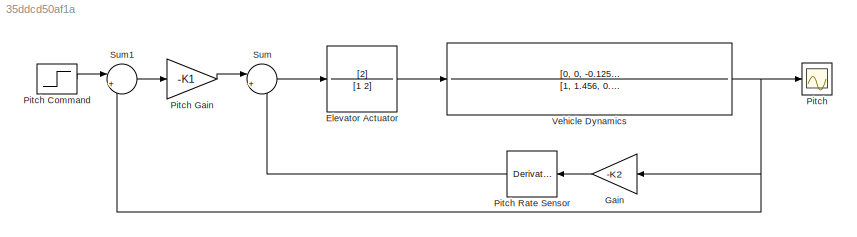
MODEL slx_35ddcd50af1a
KIND model
CONFIG AbsTol = auto
CONFIG EnableMultiTasking = off
CONFIG FixedStep = auto
CONFIG InitFcn = K1 = 1;\nK2 = 1;
CONFIG MaxStep = auto
CONFIG MinStep = auto
CONFIG RelTol = 1e-3
CONFIG SampleTimeConstraint = Unconstrained
CONFIG SolverName = VariableStepAuto
CONFIG StartTime = 0.0
CONFIG StopTime = 70
BLOCK [TransferFcn] Elevator Actuator
  Denominator = [1 2]
  NameLocation = top
  Numerator = [2]
BLOCK [Gain] Gain
  Gain = -K2
  NameLocation = top
BLOCK [Scope] Pitch
  Floating = off
  NameLocation = top
  NumInputPorts = 1
  ScopeSpecificationString = Simulink.scopes.TimeScopeBlockCfg('CurrentConfiguration', extmgr.ConfigurationSet(extmgr.Configuration('Core','General UI',true),extmgr.Configuration('Core','Source UI',true),extmgr.Configuration('Sources','WiredSimulink',true),extmgr.Configuration('Visuals','Time Domain',true,'SerializedDisplays',{struct('MinYLimReal','-0.09818','MaxYLimReal','0.8836','YLabelReal','','MinYLimMag','0.00000','MaxYL...<+1332ch>
BLOCK [Step] Pitch Command
  SampleTime = 0
BLOCK [Gain] Pitch Gain
  Gain = -K1
BLOCK [Derivative] Pitch Rate Sensor
  NameLocation = top
BLOCK [Sum] Sum
  Inputs = |+-
BLOCK [Sum] Sum1
  Inputs = |+-
BLOCK [TransferFcn] Vehicle Dynamics
  Denominator = [1, 1.456, 0.2949, 0.02079]
  NameLocation = top
  Numerator = [0, 0, -0.125, -0.054375]
LINE Elevator Actuator:1 -> Vehicle Dynamics:1
LINE Gain:1 -> Pitch Rate Sensor:1
LINE Pitch Command:1 -> Sum1:1
LINE Pitch Gain:1 -> Sum:1
LINE Pitch Rate Sensor:1 -> Sum:2
LINE Sum1:1 -> Pitch Gain:1
LINE Sum:1 -> Elevator Actuator:1
NET Vehicle Dynamics:1 -> Gain:1, Pitch:1, Sum1:2
note: NET lines group one-source signal fan-out (src -> all destinations, sorted); 1:1 wires keep LINE
